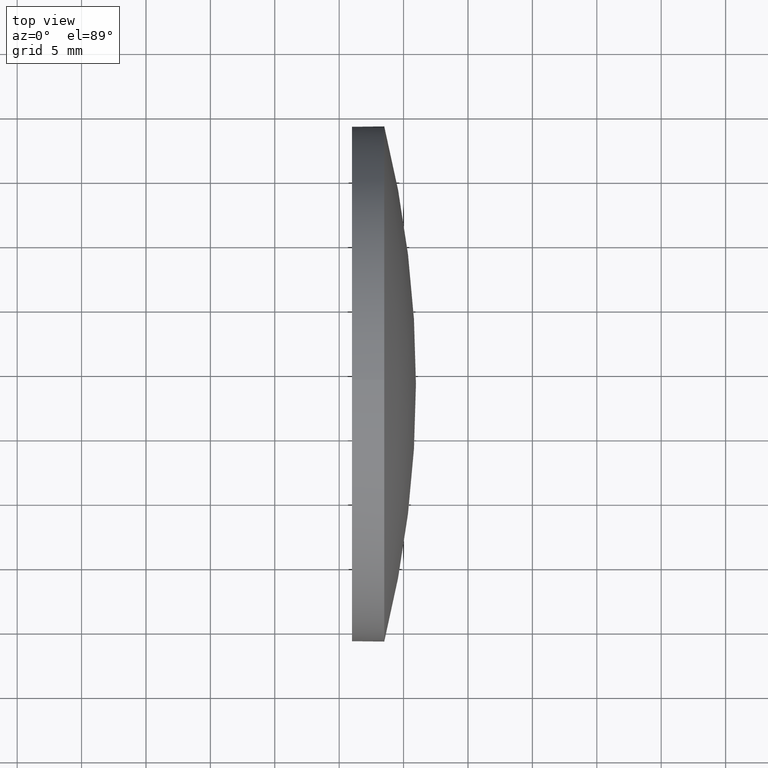
[diagram: clean part render]
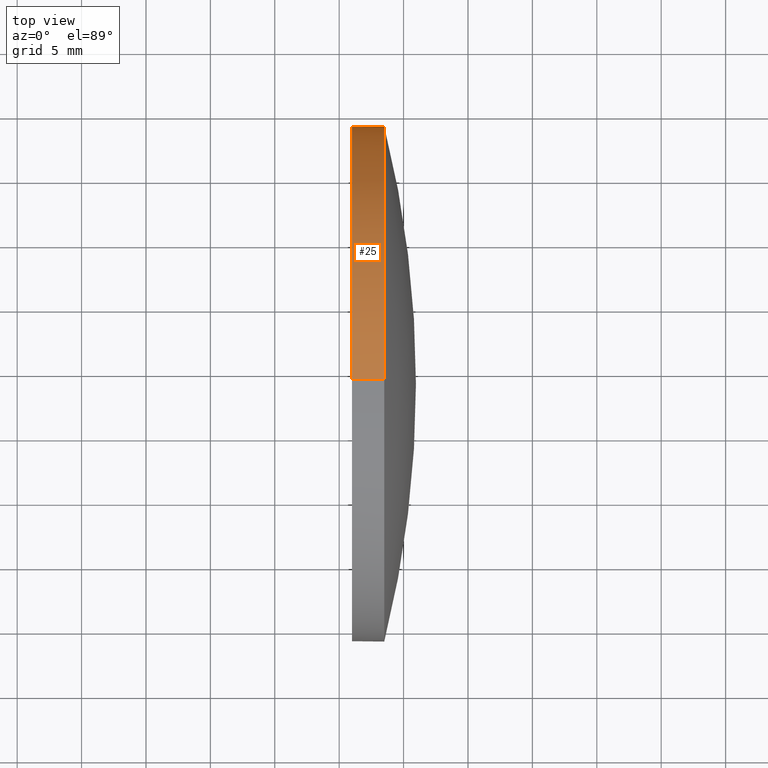
[diagram: same view with one face highlighted and labeled with its STEP entity id]
A machine part, top view. The second image highlights one B-rep face of the part: STEP entity #25.
In plain terms, the highlighted cylindrical surface (partial cylindrical patch) has radius 20 mm, axis along (-1, -0, -0).
Its self-contained STEP definition (entity closure, byte-faithful):
#3 = VERTEX_POINT ( 'NONE', #4 ) ;
#4 = CARTESIAN_POINT ( 'NONE',  ( 533.4993253388914800, 14.05586317027587200, -19.99999999999999600 ) ) ;
#6 = CARTESIAN_POINT ( 'NONE',  ( 533.4993253388914800, 14.05586317027587000, 0.0000000000000000000 ) ) ;
#11 = DIRECTION ( 'NONE',  ( -1.000000000000000000, -0.0000000000000000000, -0.0000000000000000000 ) ) ;
#13 = CARTESIAN_POINT ( 'NONE',  ( 527.0343717279055200, 14.05586317027587000, 19.99999999999999600 ) ) ;
#16 = VERTEX_POINT ( 'NONE', #139 ) ;
#17 = EDGE_CURVE ( 'NONE', #61, #152, #105, .T. ) ;
#18 = VERTEX_POINT ( 'NONE', #108 ) ;
#20 = ORIENTED_EDGE ( 'NONE', *, *, #101, .T. ) ;
#21 = AXIS2_PLACEMENT_3D ( 'NONE', #111, #180, #166 ) ;
#24 = ORIENTED_EDGE ( 'NONE', *, *, #57, .F. ) ;
#25 = ADVANCED_FACE ( 'NONE', ( #119 ), #112, .T. ) ;
#28 = AXIS2_PLACEMENT_3D ( 'NONE', #32, #78, #59 ) ;
#32 = CARTESIAN_POINT ( 'NONE',  ( 527.0343717279055200, 14.05586317027587000, 0.0000000000000000000 ) ) ;
#33 = AXIS2_PLACEMENT_3D ( 'NONE', #42, #136, #87 ) ;
#42 = CARTESIAN_POINT ( 'NONE',  ( 533.4993253388914800, 14.05586317027587000, 0.0000000000000000000 ) ) ;
#57 = EDGE_CURVE ( 'NONE', #18, #16, #75, .T. ) ;
#59 = DIRECTION ( 'NONE',  ( 0.0000000000000000000, 0.0000000000000000000, 1.000000000000000000 ) ) ;
#61 = VERTEX_POINT ( 'NONE', #130 ) ;
#75 = CIRCLE ( 'NONE', #21, 19.99999999999999600 ) ;
#78 = DIRECTION ( 'NONE',  ( -1.000000000000000000, -0.0000000000000000000, -0.0000000000000000000 ) ) ;
#81 = CIRCLE ( 'NONE', #33, 19.99999999999999600 ) ;
#87 = DIRECTION ( 'NONE',  ( 0.0000000000000000000, 0.0000000000000000000, 1.000000000000000000 ) ) ;
#88 = ORIENTED_EDGE ( 'NONE', *, *, #17, .T. ) ;
#100 = ORIENTED_EDGE ( 'NONE', *, *, #179, .F. ) ;
#101 = EDGE_CURVE ( 'NONE', #3, #16, #153, .T. ) ;
#105 = CIRCLE ( 'NONE', #126, 19.99999999999999600 ) ;
#106 = ORIENTED_EDGE ( 'NONE', *, *, #169, .T. ) ;
#107 = DIRECTION ( 'NONE',  ( -1.000000000000000000, -0.0000000000000000000, -0.0000000000000000000 ) ) ;
#108 = CARTESIAN_POINT ( 'NONE',  ( 530.9993253388914800, 14.05586317027587000, 19.99999999999999600 ) ) ;
#109 = VECTOR ( 'NONE', #173, 1000.000000000000000 ) ;
#111 = CARTESIAN_POINT ( 'NONE',  ( 530.9993253388914800, 14.05586317027587000, 0.0000000000000000000 ) ) ;
#112 = CYLINDRICAL_SURFACE ( 'NONE', #28, 19.99999999999999600 ) ;
#119 = FACE_OUTER_BOUND ( 'NONE', #125, .T. ) ;
#125 = EDGE_LOOP ( 'NONE', ( #106, #20, #24, #100, #88 ) ) ;
#126 = AXIS2_PLACEMENT_3D ( 'NONE', #6, #107, #164 ) ;
#130 = CARTESIAN_POINT ( 'NONE',  ( 533.4993253388914800, 14.05586317027587000, 19.99999999999999600 ) ) ;
#136 = DIRECTION ( 'NONE',  ( -1.000000000000000000, -0.0000000000000000000, -0.0000000000000000000 ) ) ;
#139 = CARTESIAN_POINT ( 'NONE',  ( 530.9993253388914800, 14.05586317027587200, -19.99999999999999600 ) ) ;
#147 = CARTESIAN_POINT ( 'NONE',  ( 527.0343717279055200, 14.05586317027587200, -19.99999999999999600 ) ) ;
#152 = VERTEX_POINT ( 'NONE', #167 ) ;
#153 = LINE ( 'NONE', #147, #182 ) ;
#156 = LINE ( 'NONE', #13, #109 ) ;
#164 = DIRECTION ( 'NONE',  ( 0.0000000000000000000, 0.0000000000000000000, 1.000000000000000000 ) ) ;
#166 = DIRECTION ( 'NONE',  ( 0.0000000000000000000, 0.0000000000000000000, 1.000000000000000000 ) ) ;
#167 = CARTESIAN_POINT ( 'NONE',  ( 533.4993253388914800, 34.05586317027587000, 0.0000000000000000000 ) ) ;
#169 = EDGE_CURVE ( 'NONE', #152, #3, #81, .T. ) ;
#173 = DIRECTION ( 'NONE',  ( -1.000000000000000000, -0.0000000000000000000, -0.0000000000000000000 ) ) ;
#179 = EDGE_CURVE ( 'NONE', #61, #18, #156, .T. ) ;
#180 = DIRECTION ( 'NONE',  ( -1.000000000000000000, -0.0000000000000000000, -0.0000000000000000000 ) ) ;
#182 = VECTOR ( 'NONE', #11, 1000.000000000000000 ) ;